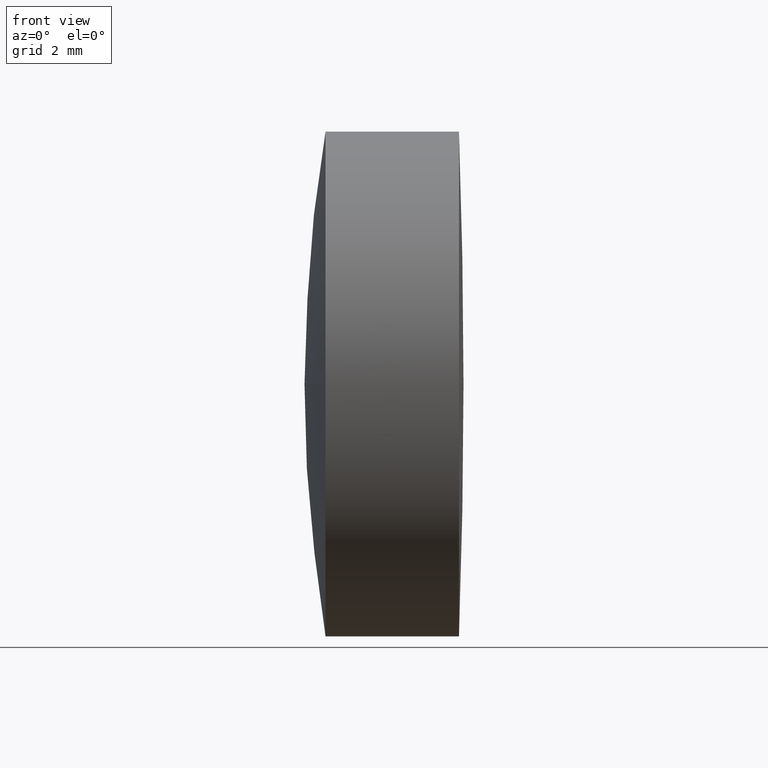
[diagram: clean part render]
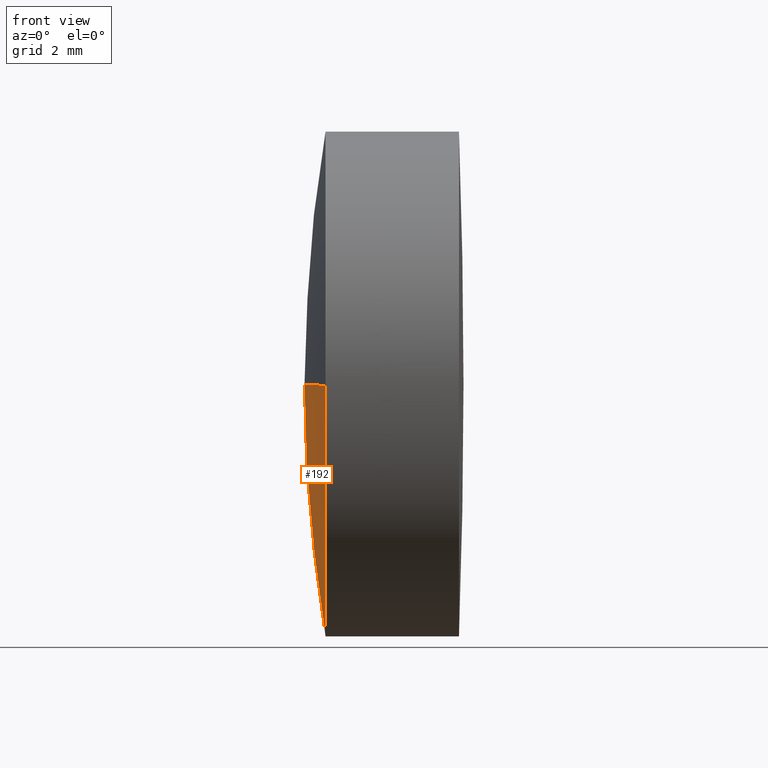
[diagram: same view with one face highlighted and labeled with its STEP entity id]
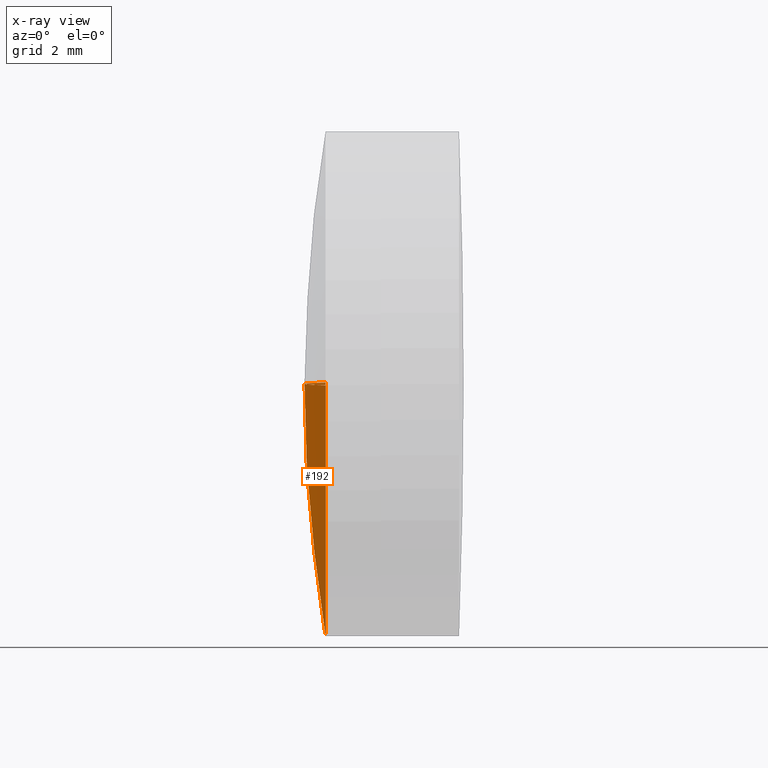
[diagram: x-ray of the same camera — body ghosted, the highlighted face saturated]
A machine part, front view. The second image highlights one B-rep face of the part: STEP entity #192.
The next image is the same camera in x-ray: the body ghosted, the highlighted face saturated — about 1% of this face is hidden behind the body in this view.
In plain terms, the highlighted spherical surface has radius 38.36 mm.
Its self-contained STEP definition (entity closure, byte-faithful):
#2 = CARTESIAN_POINT ( 'NONE',  ( 1.407591367722822895, 7.105468109940516364, 3.623841861633804095E-15 ) ) ;
#4 = CARTESIAN_POINT ( 'NONE',  ( 39.23836059067149762, 7.105468109940514587, 7.561397270752400406E-15 ) ) ;
#44 = DIRECTION ( 'NONE',  ( 0.000000000000000000, -0.9999851727800013190, -0.005445568854653790904 ) ) ;
#54 = SPHERICAL_SURFACE ( 'NONE', #431, 38.35999999999999943 ) ;
#57 = AXIS2_PLACEMENT_3D ( 'NONE', #4, #180, #44 ) ;
#61 = FACE_OUTER_BOUND ( 'NONE', #438, .T. ) ;
#67 = CARTESIAN_POINT ( 'NONE',  ( 1.407591367722823339, 0.7555622627875118180, -0.03457936222704791757 ) ) ;
#88 = AXIS2_PLACEMENT_3D ( 'NONE', #2, #347, #205 ) ;
#100 = CARTESIAN_POINT ( 'NONE',  ( 0.8783605906714925249, 7.105468109940518140, 3.581548665704631301E-15 ) ) ;
#103 = DIRECTION ( 'NONE',  ( 0.000000000000000000, 0.9999851727800013190, 0.005445568854653913202 ) ) ;
#111 = ORIENTED_EDGE ( 'NONE', *, *, #439, .F. ) ;
#122 = VERTEX_POINT ( 'NONE', #264 ) ;
#137 = AXIS2_PLACEMENT_3D ( 'NONE', #441, #443, #103 ) ;
#139 = VERTEX_POINT ( 'NONE', #100 ) ;
#167 = DIRECTION ( 'NONE',  ( 0.000000000000000000, 0.9999851727800013190, 0.005445568854653913202 ) ) ;
#168 = DIRECTION ( 'NONE',  ( 1.024442997624099077E-16, 0.005445568854653865497, -0.9999851727800014300 ) ) ;
#180 = DIRECTION ( 'NONE',  ( -1.042873694000733349E-16, -0.005445568854653790904, 0.9999851727800014300 ) ) ;
#192 = ADVANCED_FACE ( 'NONE', ( #61 ), #54, .T. ) ;
#195 = CIRCLE ( 'NONE', #440, 6.349999999999997868 ) ;
#205 = DIRECTION ( 'NONE',  ( 1.024442997624099077E-16, 0.005445568854653865497, -0.9999851727800014300 ) ) ;
#216 = CIRCLE ( 'NONE', #137, 38.35999999999999943 ) ;
#218 = ORIENTED_EDGE ( 'NONE', *, *, #372, .T. ) ;
#227 = CARTESIAN_POINT ( 'NONE',  ( 39.23836059067149762, 7.105468109940514587, 7.561397270752400406E-15 ) ) ;
#264 = CARTESIAN_POINT ( 'NONE',  ( 1.407591367722823783, 13.45537395709352069, 0.03457936222705594587 ) ) ;
#269 = EDGE_CURVE ( 'NONE', #302, #422, #351, .T. ) ;
#273 = CARTESIAN_POINT ( 'NONE',  ( 1.407591367722822895, 7.105468109940516364, 3.623841861633804095E-15 ) ) ;
#276 = CARTESIAN_POINT ( 'NONE',  ( 1.407591367722823561, 7.140047472167568188, -6.349905847153003435 ) ) ;
#286 = CIRCLE ( 'NONE', #57, 38.35999999999999943 ) ;
#302 = VERTEX_POINT ( 'NONE', #67 ) ;
#343 = ORIENTED_EDGE ( 'NONE', *, *, #269, .F. ) ;
#347 = DIRECTION ( 'NONE',  ( 1.000000000000000000, -3.773785889902083684E-17, 1.040834085586084010E-16 ) ) ;
#351 = CIRCLE ( 'NONE', #88, 6.349999999999997868 ) ;
#372 = EDGE_CURVE ( 'NONE', #139, #122, #216, .T. ) ;
#401 = DIRECTION ( 'NONE',  ( -1.042873694000733349E-16, -0.005445568854653913202, 0.9999851727800013190 ) ) ;
#406 = EDGE_CURVE ( 'NONE', #422, #122, #195, .T. ) ;
#407 = DIRECTION ( 'NONE',  ( 1.000000000000000000, -3.773785889902083684E-17, 1.040834085586084010E-16 ) ) ;
#408 = ORIENTED_EDGE ( 'NONE', *, *, #406, .F. ) ;
#422 = VERTEX_POINT ( 'NONE', #276 ) ;
#431 = AXIS2_PLACEMENT_3D ( 'NONE', #227, #401, #167 ) ;
#438 = EDGE_LOOP ( 'NONE', ( #111, #218, #408, #343 ) ) ;
#439 = EDGE_CURVE ( 'NONE', #139, #302, #286, .T. ) ;
#440 = AXIS2_PLACEMENT_3D ( 'NONE', #273, #407, #168 ) ;
#441 = CARTESIAN_POINT ( 'NONE',  ( 39.23836059067149762, 7.105468109940514587, 7.561397270752400406E-15 ) ) ;
#443 = DIRECTION ( 'NONE',  ( 1.042873694000733349E-16, 0.005445568854653913202, -0.9999851727800014300 ) ) ;